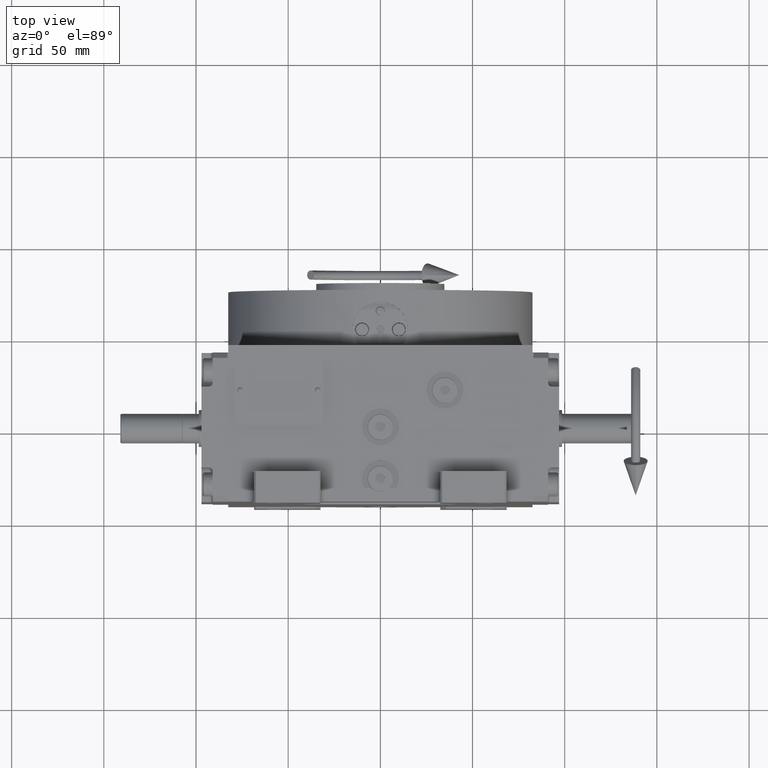
[diagram: clean part render]
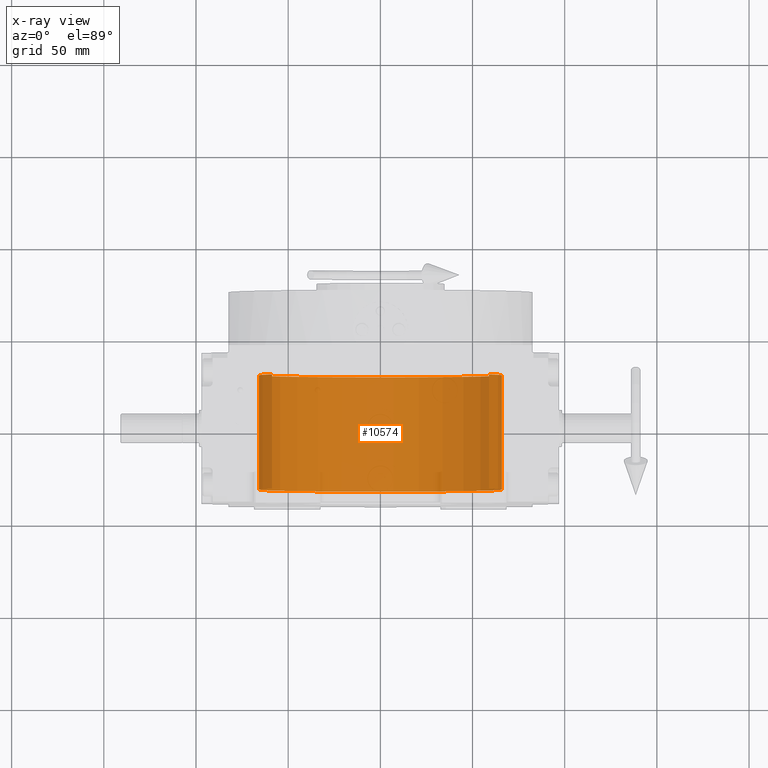
[diagram: x-ray — body ghosted, one internal face saturated and labeled with its STEP entity id]
A machine part, top view, then the same camera in x-ray: the body is ghosted and one INTERNAL B-rep face — a face not visible from any outside direction — is saturated and labeled: STEP entity #10574.
In plain terms, the highlighted cylindrical surface (partial cylindrical patch) has radius 66 mm, axis along (0, 1, 0).
Its self-contained STEP definition (entity closure, byte-faithful):
#978 = CARTESIAN_POINT ( 'NONE',  ( 58.78775382679628336, 98.15000000000000568, 30.00000000000000000 ) ) ;
#1324 = VECTOR ( 'NONE', #37111, 1000.000000000000000 ) ;
#3694 = EDGE_CURVE ( 'NONE', #46758, #61254, #7913, .T. ) ;
#3801 = AXIS2_PLACEMENT_3D ( 'NONE', #32854, #12795, #22836 ) ;
#3854 = ORIENTED_EDGE ( 'NONE', *, *, #3694, .T. ) ;
#4836 = CARTESIAN_POINT ( 'NONE',  ( 58.78775382679628336, -31.99999999999998579, 30.00000000000000000 ) ) ;
#5327 = CARTESIAN_POINT ( 'NONE',  ( 58.78775382679628336, 30.00000000000001421, 30.00000000000000000 ) ) ;
#6205 = AXIS2_PLACEMENT_3D ( 'NONE', #9240, #33489, #57752 ) ;
#6573 = CARTESIAN_POINT ( 'NONE',  ( 0.000000000000000000, -31.99999999999998579, 0.000000000000000000 ) ) ;
#7913 = CIRCLE ( 'NONE', #3801, 66.00000000000000000 ) ;
#9240 = CARTESIAN_POINT ( 'NONE',  ( 0.000000000000000000, 98.15000000000000568, 0.000000000000000000 ) ) ;
#10574 = ADVANCED_FACE ( 'NONE', ( #38977 ), #24099, .F. ) ;
#12795 = DIRECTION ( 'NONE',  ( -0.000000000000000000, 1.000000000000000000, -0.000000000000000000 ) ) ;
#13298 = LINE ( 'NONE', #978, #29372 ) ;
#13463 = CARTESIAN_POINT ( 'NONE',  ( -58.78775382679628336, 30.00000000000001421, 30.00000000000000000 ) ) ;
#16545 = EDGE_CURVE ( 'NONE', #45882, #45680, #61232, .T. ) ;
#16742 = CARTESIAN_POINT ( 'NONE',  ( -58.78775382679628336, 98.15000000000000568, 30.00000000000000000 ) ) ;
#22836 = DIRECTION ( 'NONE',  ( 0.000000000000000000, 0.000000000000000000, 1.000000000000000000 ) ) ;
#24099 = CYLINDRICAL_SURFACE ( 'NONE', #6205, 66.00000000000000000 ) ;
#27140 = ORIENTED_EDGE ( 'NONE', *, *, #16545, .F. ) ;
#29372 = VECTOR ( 'NONE', #30708, 1000.000000000000000 ) ;
#30220 = AXIS2_PLACEMENT_3D ( 'NONE', #6573, #54759, #39896 ) ;
#30708 = DIRECTION ( 'NONE',  ( -0.000000000000000000, 1.000000000000000000, -0.000000000000000000 ) ) ;
#30817 = EDGE_CURVE ( 'NONE', #45882, #46758, #13298, .T. ) ;
#32159 = ORIENTED_EDGE ( 'NONE', *, *, #36141, .T. ) ;
#32854 = CARTESIAN_POINT ( 'NONE',  ( 0.000000000000000000, 30.00000000000001421, 0.000000000000000000 ) ) ;
#33489 = DIRECTION ( 'NONE',  ( -0.000000000000000000, 1.000000000000000000, -0.000000000000000000 ) ) ;
#36141 = EDGE_CURVE ( 'NONE', #61254, #45680, #37731, .T. ) ;
#37111 = DIRECTION ( 'NONE',  ( 0.000000000000000000, -1.000000000000000000, 0.000000000000000000 ) ) ;
#37731 = LINE ( 'NONE', #16742, #1324 ) ;
#38977 = FACE_OUTER_BOUND ( 'NONE', #52047, .T. ) ;
#39896 = DIRECTION ( 'NONE',  ( 0.000000000000000000, 0.000000000000000000, 1.000000000000000000 ) ) ;
#45680 = VERTEX_POINT ( 'NONE', #46613 ) ;
#45882 = VERTEX_POINT ( 'NONE', #4836 ) ;
#46613 = CARTESIAN_POINT ( 'NONE',  ( -58.78775382679628336, -31.99999999999998579, 30.00000000000000000 ) ) ;
#46758 = VERTEX_POINT ( 'NONE', #5327 ) ;
#47954 = ORIENTED_EDGE ( 'NONE', *, *, #30817, .T. ) ;
#52047 = EDGE_LOOP ( 'NONE', ( #32159, #27140, #47954, #3854 ) ) ;
#54759 = DIRECTION ( 'NONE',  ( -0.000000000000000000, 1.000000000000000000, -0.000000000000000000 ) ) ;
#57752 = DIRECTION ( 'NONE',  ( 0.000000000000000000, 0.000000000000000000, 1.000000000000000000 ) ) ;
#61232 = CIRCLE ( 'NONE', #30220, 66.00000000000000000 ) ;
#61254 = VERTEX_POINT ( 'NONE', #13463 ) ;